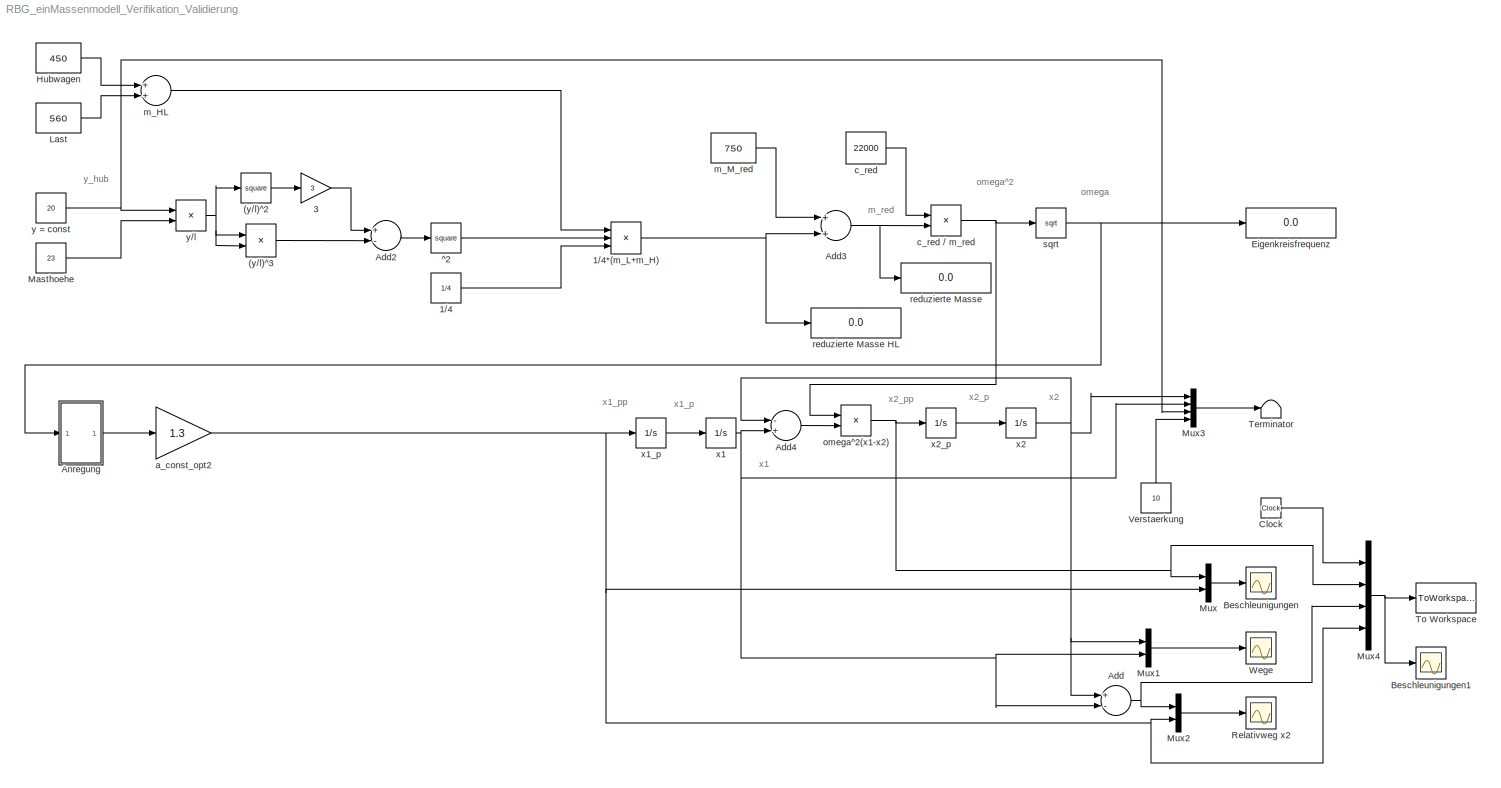
MODEL RBG_einMassenmodell_Verifikation_Validierung
KIND model
BLOCK [Math] (y//l)^2
  Operator = square
  Ports = [1, 1]
  SID = 1
BLOCK [Product] (y//l)^3
  InputSameDT = off
  OutDataTypeStr = Inherit: Inherit via internal rule
  Ports = [2, 1]
  SID = 2
  SaturateOnIntegerOverflow = off
BLOCK [Constant] 1//4
  SID = 52
  Value = 1/4
BLOCK [Product] 1//4*(m_L+m_H)
  InputSameDT = off
  Inputs = 3
  OutDataTypeStr = Inherit: Inherit via internal rule
  Ports = [3, 1]
  SID = 48
  SaturateOnIntegerOverflow = off
BLOCK [Gain] 3
  Gain = 3
  OutDataTypeStr = Inherit: Inherit via internal rule
  ParamDataTypeStr = Inherit: Inherit via internal rule
  SID = 5
  SaturateOnIntegerOverflow = off
BLOCK [Sum] Add
  InputSameDT = off
  Inputs = +-
  OutDataTypeStr = Inherit: Inherit via internal rule
  Ports = [2, 1]
  SID = 6
  SaturateOnIntegerOverflow = off
BLOCK [Sum] Add2
  InputSameDT = off
  Inputs = +-
  OutDataTypeStr = Inherit: Inherit via internal rule
  Ports = [2, 1]
  SID = 8
  SaturateOnIntegerOverflow = off
BLOCK [Sum] Add3
  InputSameDT = off
  OutDataTypeStr = Inherit: Inherit via internal rule
  Ports = [2, 1]
  SID = 9
  SaturateOnIntegerOverflow = off
BLOCK [Sum] Add4
  InputSameDT = off
  Inputs = -+
  OutDataTypeStr = Inherit: Inherit via internal rule
  Ports = [2, 1]
  SID = 10
  SaturateOnIntegerOverflow = off
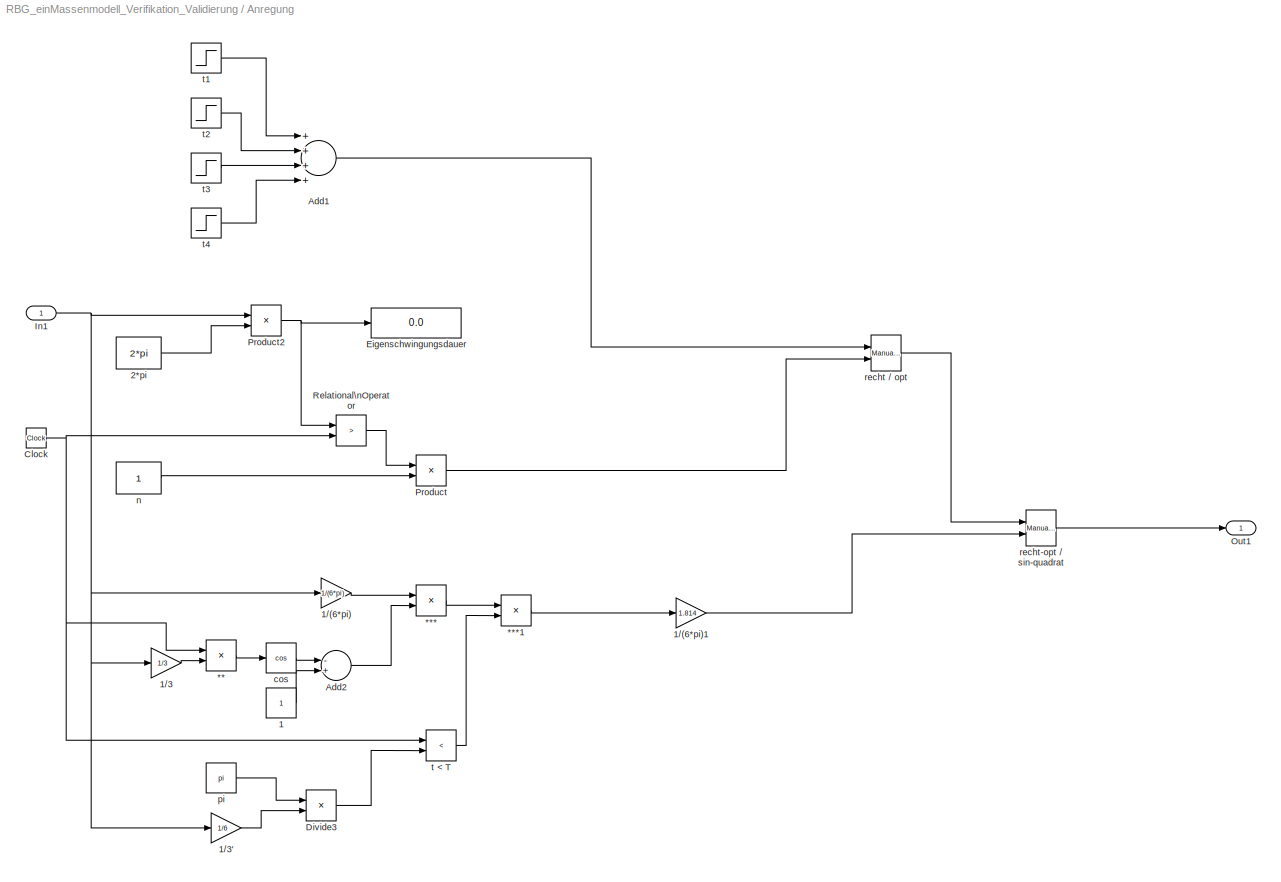
BLOCK [SubSystem] Anregung
  Ports = [1, 1]
  RequestExecContextInheritance = off
  SID = 77
BLOCK [Product] Anregung/**
  InputSameDT = off
  OutDataTypeStr = Inherit: Inherit via internal rule
  Ports = [2, 1]
  SID = 80
  SaturateOnIntegerOverflow = off
BLOCK [Product] Anregung/***
  InputSameDT = off
  OutDataTypeStr = Inherit: Inherit via internal rule
  Ports = [2, 1]
  SID = 81
  SaturateOnIntegerOverflow = off
BLOCK [Product] Anregung/***1
  InputSameDT = off
  OutDataTypeStr = Inherit: Inherit via internal rule
  Ports = [2, 1]
  SID = 82
  SaturateOnIntegerOverflow = off
BLOCK [Constant] Anregung/1
  SID = 83
BLOCK [Gain] Anregung/1//(6*pi)
  Gain = 1/(6*pi)
  OutDataTypeStr = Inherit: Inherit via internal rule
  ParamDataTypeStr = Inherit: Inherit via internal rule
  SID = 84
  SaturateOnIntegerOverflow = off
BLOCK [Gain] Anregung/1//(6*pi)1
  Gain = 1.814
  OutDataTypeStr = Inherit: Inherit via internal rule
  ParamDataTypeStr = Inherit: Inherit via internal rule
  SID = 157
  SaturateOnIntegerOverflow = off
BLOCK [Gain] Anregung/1//3
  Gain = 1/3
  OutDataTypeStr = Inherit: Inherit via internal rule
  ParamDataTypeStr = Inherit: Inherit via internal rule
  SID = 85
  SaturateOnIntegerOverflow = off
BLOCK [Gain] Anregung/1//3'
  Gain = 1/6
  OutDataTypeStr = Inherit: Inherit via internal rule
  ParamDataTypeStr = Inherit: Inherit via internal rule
  SID = 88
  SaturateOnIntegerOverflow = off
BLOCK [Constant] Anregung/2*pi
  SID = 4
  Value = 2*pi
BLOCK [Sum] Anregung/Add1
  InputSameDT = off
  Inputs = ++++
  OutDataTypeStr = Inherit: Inherit via internal rule
  Ports = [4, 1]
  SID = 7
  SaturateOnIntegerOverflow = off
BLOCK [Sum] Anregung/Add2
  InputSameDT = off
  Inputs = -+
  OutDataTypeStr = Inherit: Inherit via internal rule
  Ports = [2, 1]
  SID = 86
  SaturateOnIntegerOverflow = off
BLOCK [Clock] Anregung/Clock
  SID = 12
BLOCK [Product] Anregung/Divide3
  InputSameDT = off
  Inputs = */
  OutDataTypeStr = Inherit: Inherit via internal rule
  Ports = [2, 1]
  RndMeth = Floor
  SID = 89
  SaturateOnIntegerOverflow = off
BLOCK [Display] Anregung/Eigenschwingungsdauer
  Decimation = 1
  Ports = [1]
  SID = 14
BLOCK [Inport] Anregung/In1
  IconDisplay = Port number
  SID = 79
BLOCK [Outport] Anregung/Out1
  IconDisplay = Port number
  SID = 78
BLOCK [Product] Anregung/Product
  InputSameDT = off
  OutDataTypeStr = Inherit: Inherit via internal rule
  Ports = [2, 1]
  SID = 20
  SaturateOnIntegerOverflow = off
BLOCK [Product] Anregung/Product2
  InputSameDT = off
  Inputs = /*
  OutDataTypeStr = Inherit: Inherit via internal rule
  Ports = [2, 1]
  SID = 21
  SaturateOnIntegerOverflow = off
BLOCK [RelationalOperator] Anregung/Relational\nOperator
  InputSameDT = off
  Operator = >
  Ports = [2, 1]
  SID = 22
BLOCK [Trigonometry] Anregung/cos 
  Operator = cos
  Ports = [1, 1]
  SID = 87
BLOCK [Constant] Anregung/n
  SID = 33
BLOCK [Constant] Anregung/pi
  SID = 90
  Value = pi
BLOCK [Reference] Anregung/recht // opt  REF=simulink/Signal\nRouting/Manual Switch
  Ports = [2, 1]
  SID = 158
  SourceBlock = simulink/Signal\nRouting/Manual Switch
  SourceType = Manual Switch
  action = 0
  sw = 1
  varsize = off
BLOCK [Reference] Anregung/recht-opt // sin-quadrat  REF=simulink/Signal\nRouting/Manual Switch
  Ports = [2, 1]
  SID = 160
  SourceBlock = simulink/Signal\nRouting/Manual Switch
  SourceType = Manual Switch
  action = 0
  sw = 1
  varsize = off
BLOCK [RelationalOperator] Anregung/t < T
  InputSameDT = off
  Operator = <
  OutDataTypeStr = boolean
  Ports = [2, 1]
  SID = 91
BLOCK [Step] Anregung/t1
  SID = 37
  SampleTime = 0
  Time = 0
BLOCK [Step] Anregung/t2
  After = -1
  SID = 38
  SampleTime = 0
  Time = 2
BLOCK [Step] Anregung/t3
  After = -1
  SID = 39
  SampleTime = 0
  Time = 8
BLOCK [Step] Anregung/t4
  SID = 40
  SampleTime = 0
  Time = 10
BLOCK [Scope] Beschleunigungen
  DataFormat = StructureWithTime
  Floating = off
  NumInputPorts = 1
  Ports = [1]
  SID = 11
  SampleTime = 0
  SaveName = ScopeData4
  ShowLegends = off
  YMax = 1.75
  YMin = -2
BLOCK [Scope] Beschleunigungen1
  DataFormat = StructureWithTime
  Floating = off
  NumInputPorts = 1
  Ports = [1]
  SID = 112
  SampleTime = 0
  SaveName = ScopeData7
  ShowLegends = off
  YMax = 3
  YMin = -0.5
BLOCK [Clock] Clock
  SID = 106
BLOCK [Display] Eigenkreisfrequenz
  Decimation = 1
  Ports = [1]
  SID = 13
BLOCK [Constant] Hubwagen
  SID = 50
  Value = 450
BLOCK [Constant] Last
  SID = 51
  Value = 560
BLOCK [Constant] Masthoehe
  SID = 15
  Value = 23
BLOCK [Mux] Mux
  DisplayOption = bar
  Inputs = 2
  Ports = [2, 1]
  SID = 16
BLOCK [Mux] Mux1
  DisplayOption = bar
  Inputs = 2
  Ports = [2, 1]
  SID = 17
BLOCK [Mux] Mux2
  DisplayOption = bar
  Inputs = 2
  Ports = [2, 1]
  SID = 18
BLOCK [Mux] Mux3
  DisplayOption = bar
  Ports = [4, 1]
  SID = 19
BLOCK [Mux] Mux4
  DisplayOption = bar
  Ports = [4, 1]
  SID = 109
BLOCK [Scope] Relativweg x2
  DataFormat = StructureWithTime
  Floating = off
  NumInputPorts = 1
  Ports = [1]
  SID = 23
  SampleTime = 0
  SaveName = ScopeData6
  ShowLegends = off
  TimeRange = 20
  YMax = 2
  YMin = -2
BLOCK [Terminator] Terminator
  SID = 161
BLOCK [ToWorkspace] To Workspace
  MaxDataPoints = inf
  Ports = [1]
  SID = 108
  SampleTime = -1
  VariableName = w
BLOCK [Constant] Verstaerkung
  SID = 25
  Value = 10
BLOCK [Scope] Wege
  DataFormat = StructureWithTime
  Floating = off
  NumInputPorts = 1
  Ports = [1]
  SID = 26
  SampleTime = 0
  ShowLegends = off
  YMax = 22
  YMin = 0
BLOCK [Math] ^2
  Operator = square
  Ports = [1, 1]
  SID = 27
BLOCK [Gain] a_const_opt2
  Gain = 1.3
  OutDataTypeStr = Inherit: Inherit via internal rule
  ParamDataTypeStr = Inherit: Inherit via internal rule
  SID = 121
  SaturateOnIntegerOverflow = off
BLOCK [Constant] c_red
  SID = 29
  Value = 22000
BLOCK [Product] c_red // m_red
  InputSameDT = off
  Inputs = */
  OutDataTypeStr = Inherit: Inherit via internal rule
  Ports = [2, 1]
  SID = 30
  SaturateOnIntegerOverflow = off
BLOCK [Sum] m_HL
  InputSameDT = off
  OutDataTypeStr = Inherit: Inherit via internal rule
  Ports = [2, 1]
  SID = 49
  SaturateOnIntegerOverflow = off
BLOCK [Constant] m_M_red
  SID = 32
  Value = 750
BLOCK [Product] omega^2(x1-x2)
  InputSameDT = off
  OutDataTypeStr = Inherit: Inherit via internal rule
  Ports = [2, 1]
  SID = 34
  SaturateOnIntegerOverflow = off
BLOCK [Display] reduzierte Masse
  Decimation = 2
  Ports = [1]
  SID = 156
BLOCK [Display] reduzierte Masse HL
  Decimation = 2
  Ports = [1]
  SID = 35
BLOCK [Math] sqrt
  Operator = sqrt
  Ports = [1, 1]
  SID = 36
BLOCK [Integrator] x1
  Ports = [1, 1]
  SID = 41
BLOCK [Integrator] x1_p
  Ports = [1, 1]
  SID = 42
BLOCK [Integrator] x2
  Ports = [1, 1]
  SID = 43
BLOCK [Integrator] x2_p
  Ports = [1, 1]
  SID = 44
BLOCK [Constant] y = const
  SID = 45
  Value = 20
BLOCK [Product] y//l
  InputSameDT = off
  Inputs = */
  OutDataTypeStr = Inherit: Inherit via internal rule
  Ports = [2, 1]
  SID = 46
  SaturateOnIntegerOverflow = off
ANNOTATION (root): m_red
ANNOTATION (root): omega
ANNOTATION (root): omega^2
ANNOTATION (root): x1
ANNOTATION (root): x1_p
ANNOTATION (root): x1_pp
ANNOTATION (root): x2
ANNOTATION (root): x2_p
ANNOTATION (root): x2_pp
ANNOTATION (root): y_hub
LINE (y//l)^2:1 -> 3:1
LINE (y//l)^3:1 -> Add2:2
NET 1//4*(m_L+m_H):1 -> Add3:2, reduzierte Masse HL:1
LINE 1//4:1 -> 1//4*(m_L+m_H):3
LINE 3:1 -> Add2:1
LINE Add2:1 -> ^2:1
NET Add3:1 -> c_red // m_red:2, reduzierte Masse:1
LINE Add4:1 -> omega^2(x1-x2):2
NET Add:1 -> Mux2:1, Mux4:3
LINE Anregung/***1:1 -> Anregung/1//(6*pi)1:1
LINE Anregung/***:1 -> Anregung/***1:1
LINE Anregung/**:1 -> Anregung/cos :1
LINE Anregung/1//(6*pi)1:1 -> Anregung/recht-opt // sin-quadrat:2
LINE Anregung/1//(6*pi):1 -> Anregung/***:1
LINE Anregung/1//3':1 -> Anregung/Divide3:2
LINE Anregung/1//3:1 -> Anregung/**:2
LINE Anregung/1:1 -> Anregung/Add2:2
LINE Anregung/2*pi:1 -> Anregung/Product2:2
LINE Anregung/Add1:1 -> Anregung/recht // opt:1
LINE Anregung/Add2:1 -> Anregung/***:2
NET Anregung/Clock:1 -> Anregung/**:1, Anregung/Relational\nOperator:2, Anregung/t < T:1
LINE Anregung/Divide3:1 -> Anregung/t < T:2
NET Anregung/In1:1 -> Anregung/1//(6*pi):1, Anregung/1//3':1, Anregung/1//3:1, Anregung/Product2:1
NET Anregung/Product2:1 -> Anregung/Eigenschwingungsdauer:1, Anregung/Relational\nOperator:1
LINE Anregung/Product:1 -> Anregung/recht // opt:2
LINE Anregung/Relational\nOperator:1 -> Anregung/Product:1
LINE Anregung/cos :1 -> Anregung/Add2:1
LINE Anregung/n:1 -> Anregung/Product:2
LINE Anregung/pi:1 -> Anregung/Divide3:1
LINE Anregung/recht // opt:1 -> Anregung/recht-opt // sin-quadrat:1
LINE Anregung/recht-opt // sin-quadrat:1 -> Anregung/Out1:1
LINE Anregung/t < T:1 -> Anregung/***1:2
LINE Anregung/t1:1 -> Anregung/Add1:1
LINE Anregung/t2:1 -> Anregung/Add1:2
LINE Anregung/t3:1 -> Anregung/Add1:3
LINE Anregung/t4:1 -> Anregung/Add1:4
LINE Anregung:1 -> a_const_opt2:1
LINE Clock:1 -> Mux4:1
LINE Hubwagen:1 -> m_HL:1
LINE Last:1 -> m_HL:2
LINE Masthoehe:1 -> y//l:2
LINE Mux1:1 -> Wege:1
LINE Mux2:1 -> Relativweg x2:1
LINE Mux3:1 -> Terminator:1
NET Mux4:1 -> Beschleunigungen1:1, To Workspace:1
LINE Mux:1 -> Beschleunigungen:1
LINE Verstaerkung:1 -> Mux3:4
LINE ^2:1 -> 1//4*(m_L+m_H):2
NET a_const_opt2:1 -> Mux2:2, Mux4:4, Mux:2, x1_p:1
NET c_red // m_red:1 -> omega^2(x1-x2):1, sqrt:1
LINE c_red:1 -> c_red // m_red:1
LINE m_HL:1 -> 1//4*(m_L+m_H):1
LINE m_M_red:1 -> Add3:1
NET omega^2(x1-x2):1 -> Mux4:2, Mux:1, x2_p:1
NET sqrt:1 -> Anregung:1, Eigenkreisfrequenz:1
NET x1:1 -> Add4:2, Add:2, Mux1:2, Mux3:2
LINE x1_p:1 -> x1:1
NET x2:1 -> Add4:1, Add:1, Mux1:1, Mux3:1
LINE x2_p:1 -> x2:1
NET y = const:1 -> Mux3:3, y//l:1
NET y//l:1 -> (y//l)^2:1, (y//l)^3:1, (y//l)^3:2
note: NET lines group one-source signal fan-out (src -> all destinations, sorted); 1:1 wires keep LINE
